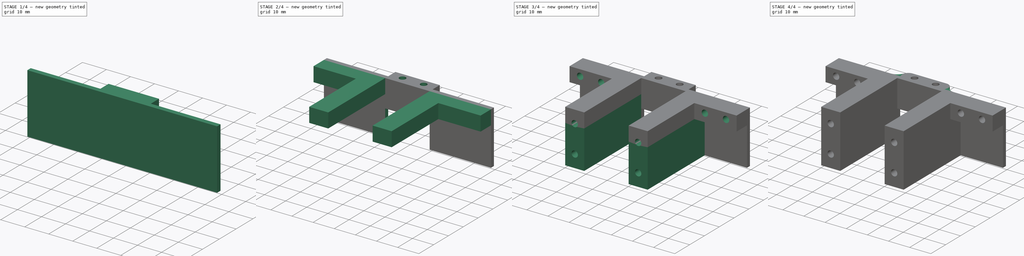
[diagram: build sequence overview — one tinted view per stage of 4, left to right]
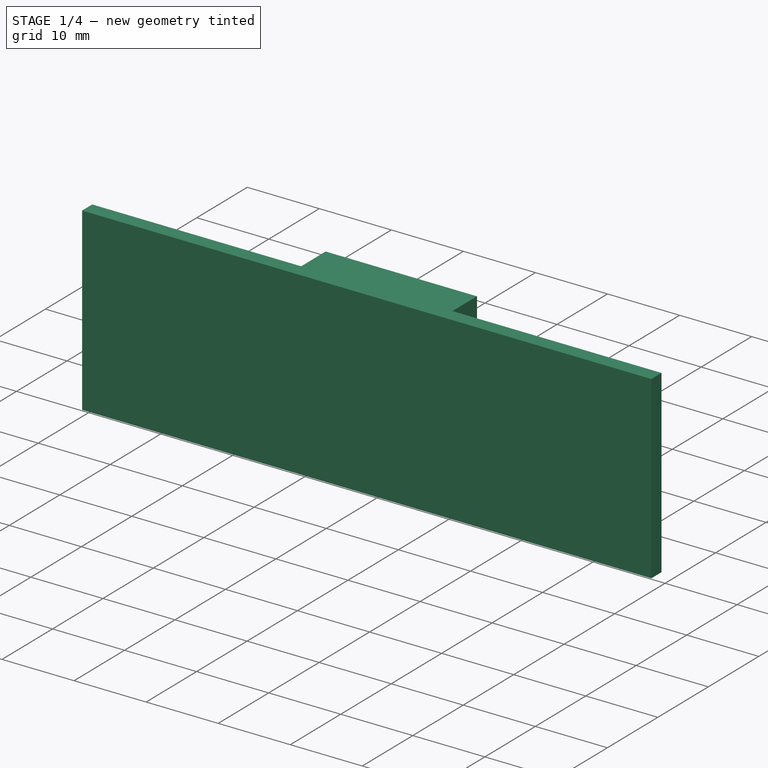
[diagram: stage 1 of 4 — iso view after this stage's code; geometry added in this stage tinted green]
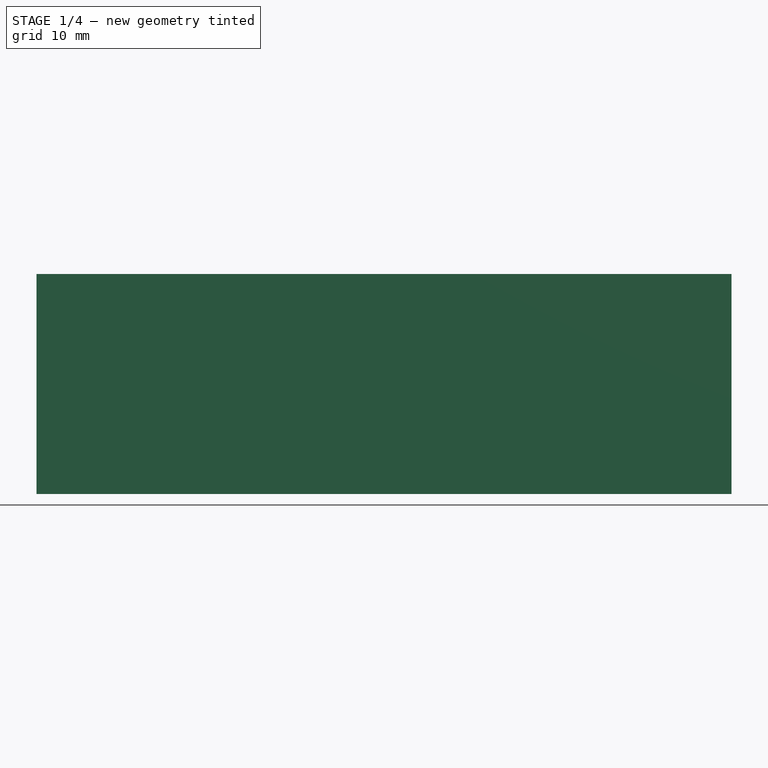
[diagram: stage 1 of 4 — front view after this stage's code; geometry added in this stage tinted green]
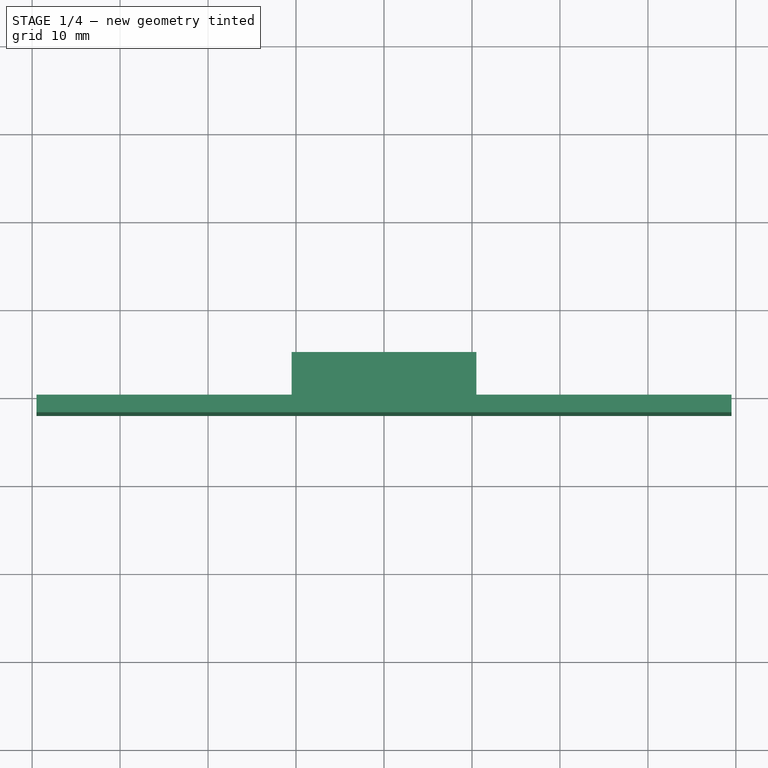
[diagram: stage 1 of 4 — top view after this stage's code; geometry added in this stage tinted green]
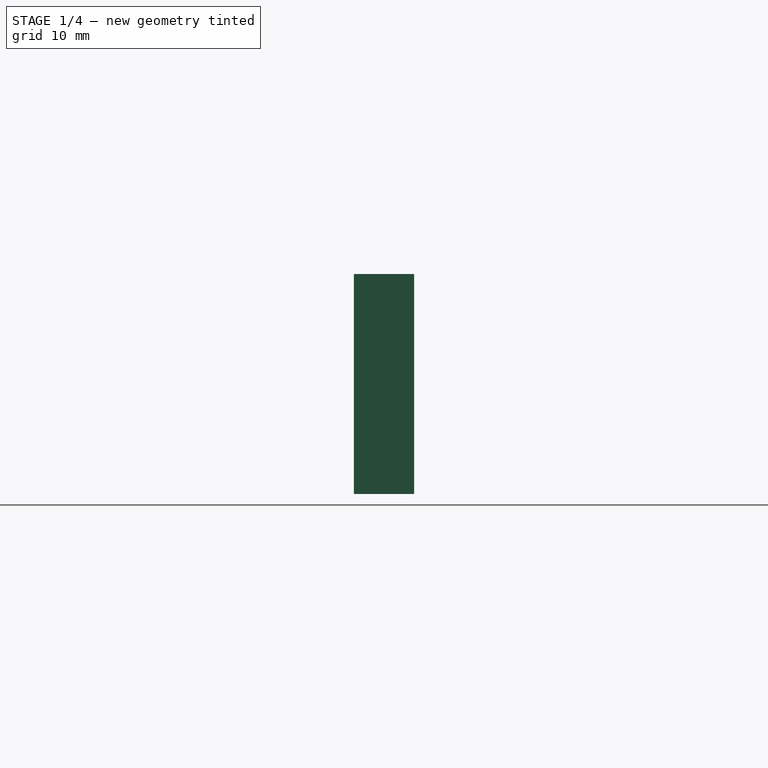
[diagram: stage 1 of 4 — right view after this stage's code; geometry added in this stage tinted green]
FCSTD DOCUMENT  (FreeCAD 0.21R33668 +26 (Git))
Label: 6F_hipfront2
License: All rights reserved
LicenseURL: http://en.wikipedia.org/wiki/All_rights_reserved
objects: Sketcher::SketchObject×8, PartDesign::Pad×4, PartDesign::Pocket×4, PartDesign::Fillet×2, Spreadsheet::Sheet×1, PartDesign::Plane×1, PartDesign::Body×1
note: 30 computed .brp shape members not serialized (recipe doc carries the construction recipe); baked Part::Feature solids carry a one-line shape summary decoded from their .brp

FEATURE [Sketcher::SketchObject] Sketch  label="baseSketch"
  FullyConstrained = true
  MapMode = 5
  Placement = pos=(0,0,0) rot=(1,0,0;1.5708rad)
  Support = -> [XZ_Plane]
  expr: Constraints[6] = Spreadsheet.hip_width
  expr: Constraints[8] = Spreadsheet.hip_height_frontback
  sketch-geometry (4):
    g0: LineSegment StartX=-39.5 StartY=12.5 StartZ=0 EndX=39.5 EndY=12.5 EndZ=0
    g1: LineSegment StartX=39.5 StartY=12.5 StartZ=0 EndX=39.5 EndY=-12.5 EndZ=0
    g2: LineSegment StartX=39.5 StartY=-12.5 StartZ=0 EndX=-39.5 EndY=-12.5 EndZ=0
    g3: LineSegment StartX=-39.5 StartY=-12.5 StartZ=0 EndX=-39.5 EndY=12.5 EndZ=0
  constraints (10):
    c: Coincident(g0,g1)
    c: Coincident(g1,g2)
    c: Coincident(g2,g3)
    c: Coincident(g3,g0)
    c: Horizontal(g2)
    c: Vertical(g1)
    c: DistanceX(g0,g0) = 79
    c: Symmetric(g0,g0,g-2)
    c: DistanceY(g3,g3) = 25
    c: Symmetric(g0,g2,g-1)
FEATURE [Spreadsheet::Sheet] Spreadsheet
  cells = A2='hip_width; B2(hip_width)=79; A3='hip_height_frontback; B3(hip_height_frontback)=25; A4='hole_from_mid; B4(hole_from_mid)=17; A5='hole_dia; B5(hole_dia)=3; A6='hole_dist_from_middle; B6(hole_dist_from_middle)=6.25; A7='servo_hold_depth; B7(servo_hold_depth)=6.85; A8='servo_hold_width; B8(servo_hold_width)=21; A9='servo_hole_from_hip_plate; B9(servo_hole_from_hip_plate)==B7 - 3 - B11; A10='servo_holes_distance; B10(servo_holes_distance)=10; A11='thickness; B11(thickness)=2
FEATURE [PartDesign::Pad] Pad  label="basePad"
  Direction = (0,-1,-2e-16)
  Length = 2
  Length2 = 10
  Placement = pos=(0,0,0) rot=(1,0,0;1.5708rad)
  Profile = -> Sketch
  ReferenceAxis = -> Sketch [N_Axis]
  Type = 0
  expr: Length = Spreadsheet.thickness
FEATURE [Sketcher::SketchObject] Sketch001  label="midServoFrontSketch"
  ExternalGeometry = -> [Pad]
  FullyConstrained = true
  MapMode = 5
  Placement = pos=(0,0,0) rot=(-1,0,0;1.5708rad)
  Support = -> [Pad]
  expr: Constraints[7] = Spreadsheet.servo_hold_width
  sketch-geometry (4):
    g0: LineSegment StartX=-10.5 StartY=12.5 StartZ=0 EndX=10.5 EndY=12.5 EndZ=0
    g1: LineSegment StartX=10.5 StartY=12.5 StartZ=0 EndX=10.5 EndY=-12.5 EndZ=0
    g2: LineSegment StartX=10.5 StartY=-12.5 StartZ=0 EndX=-10.5 EndY=-12.5 EndZ=0
    g3: LineSegment StartX=-10.5 StartY=-12.5 StartZ=0 EndX=-10.5 EndY=12.5 EndZ=0
  constraints (11):
    c: Coincident(g0,g1)
    c: Coincident(g1,g2)
    c: Coincident(g2,g3)
    c: Coincident(g3,g0)
    c: Horizontal(g2)
    c: Vertical(g1)
    c: Vertical(g3)
    c: DistanceX(g0,g0) = 21
    c: Symmetric(g0,g0,g-2)
    c: Horizontal(g2,g-4)
    c: Horizontal(g0,g-5)
FEATURE [PartDesign::Pad] Pad001  label="midServoFrontPad"
  BaseFeature = -> Pad
  Direction = (0,1,2e-16)
  Length = 4.85
  Length2 = 10
  Placement = pos=(0,0,0) rot=(1,0,0;1.5708rad)
  Profile = -> Sketch001
  ReferenceAxis = -> Sketch001 [N_Axis]
  Type = 0
  expr: Length = Spreadsheet.servo_hold_depth - Spreadsheet.thickness
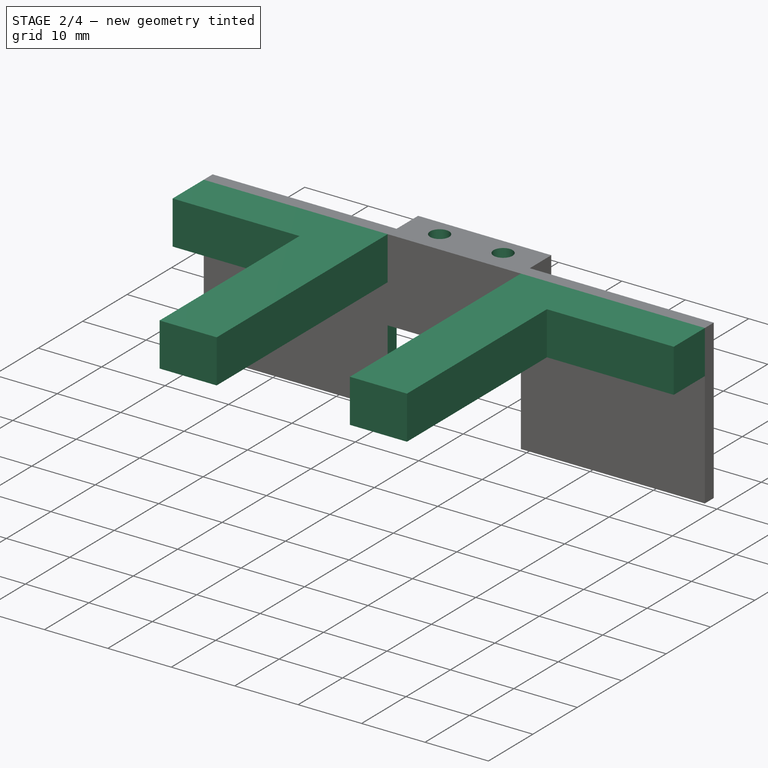
[diagram: stage 2 of 4 — iso view after this stage's code; geometry added in this stage tinted green]
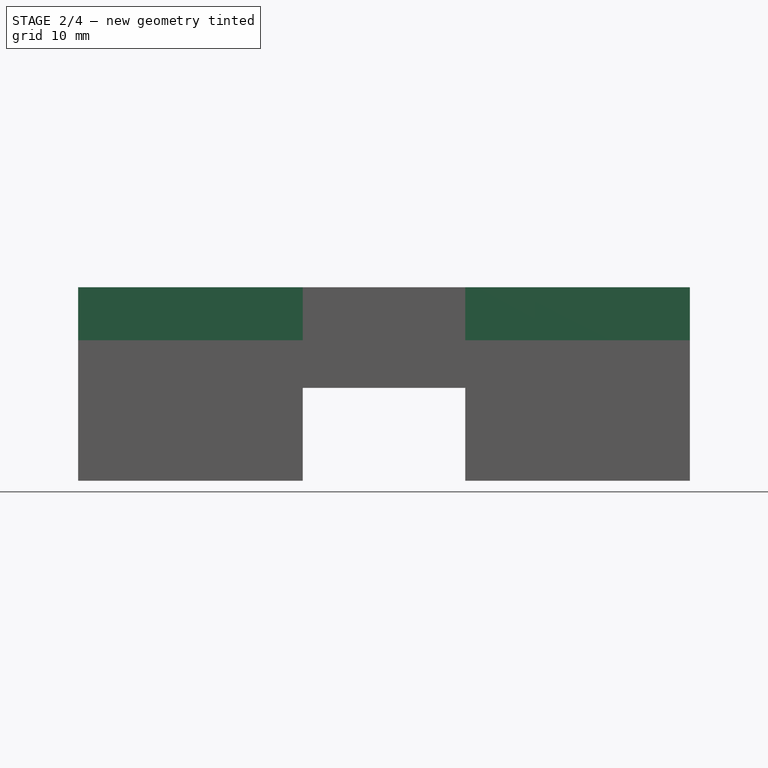
[diagram: stage 2 of 4 — front view after this stage's code; geometry added in this stage tinted green]
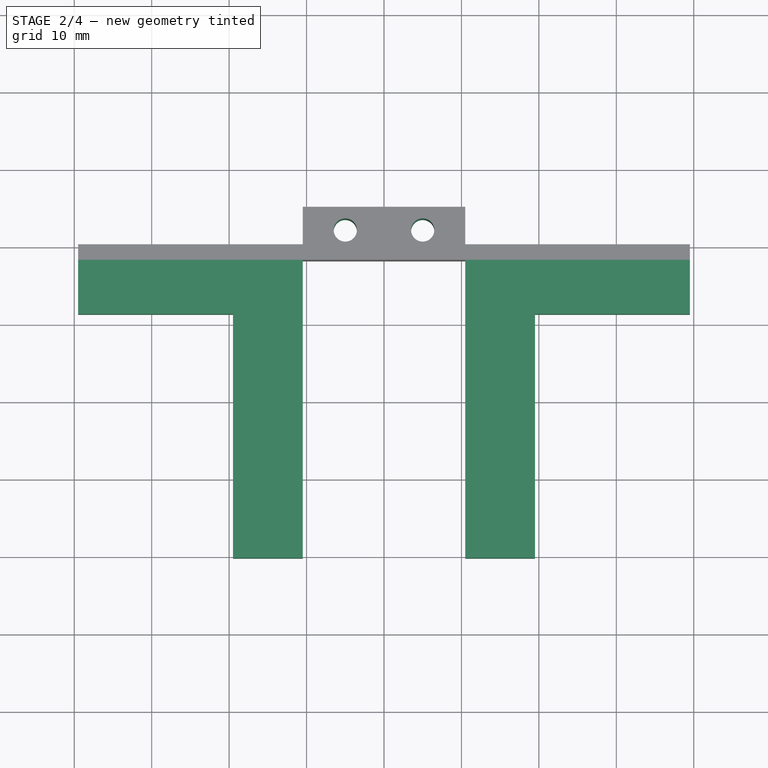
[diagram: stage 2 of 4 — top view after this stage's code; geometry added in this stage tinted green]
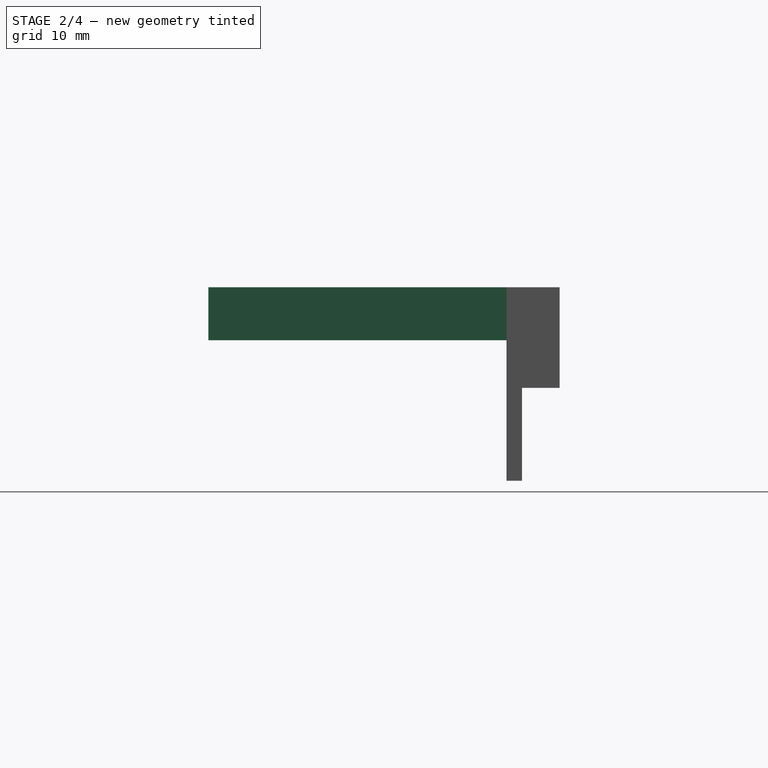
[diagram: stage 2 of 4 — right view after this stage's code; geometry added in this stage tinted green]
FEATURE [Sketcher::SketchObject] Sketch002  label="midServoFrontHolesSketch"
  FullyConstrained = true
  MapMode = 5
  Placement = pos=(0,-2.8e-15,12.5) rot=(0,0,1;3.14159rad)
  Support = -> [Pad001]
  expr: Constraints[1] = Spreadsheet.servo_hole_from_hip_plate
  expr: Constraints[3] = Spreadsheet.hole_dia
  expr: Constraints[4] = Spreadsheet.servo_holes_distance
  sketch-geometry (2):
    g0: Circle CenterX=-5 CenterY=-1.85 CenterZ=0 NormalX=0 NormalY=0 NormalZ=1 AngleXU=0 Radius=1.5
    g1: Circle CenterX=5 CenterY=-1.85 CenterZ=0 NormalX=0 NormalY=0 NormalZ=1 AngleXU=0 Radius=1.5
  constraints (5):
    c: Symmetric(g1,g0,g-2)
    c: DistanceY(g1,g-1) = 1.85
    c: Equal(g1,g0)
    c: Diameter(g1) = 3
    c: DistanceX(g0,g1) = 10
FEATURE [PartDesign::Pocket] Pocket  label="midServoFronHolesPocket"
  BaseFeature = -> Pad001
  Direction = (0,2e-16,-1)
  Length = 0
  Length2 = 5
  Placement = pos=(0,0,0) rot=(1,0,0;1.5708rad)
  Profile = -> Sketch002
  ReferenceAxis = -> Sketch002 [N_Axis]
  Type = 1
FEATURE [Sketcher::SketchObject] Sketch003
  ExternalGeometry = -> [Pocket]
  FullyConstrained = true
  MapMode = 5
  Placement = pos=(0,4.85,1.1e-15) rot=(-1,0,0;1.5708rad)
  Support = -> [Pocket]
  sketch-geometry (4):
    g0: LineSegment StartX=-10.5 StartY=12.5 StartZ=0 EndX=10.5 EndY=12.5 EndZ=0
    g1: LineSegment StartX=10.5 StartY=12.5 StartZ=0 EndX=10.5 EndY=0.5 EndZ=0
    g2: LineSegment StartX=10.5 StartY=0.5 StartZ=0 EndX=-10.5 EndY=0.5 EndZ=0
    g3: LineSegment StartX=-10.5 StartY=0.5 StartZ=0 EndX=-10.5 EndY=12.5 EndZ=0
  constraints (10):
    c: Coincident(g0,g1)
    c: Coincident(g1,g2)
    c: Coincident(g2,g3)
    c: Coincident(g3,g0)
    c: Horizontal(g2)
    c: Vertical(g1)
    c: Vertical(g3)
    c: DistanceY(g1,g0) = 12
    c: Coincident(g-3,g0)
    c: Coincident(g0,g-3)
FEATURE [PartDesign::Pocket] Pocket001
  BaseFeature = -> Pocket
  Direction = (0,-1,-2e-16)
  Length = 10
  Length2 = 5
  Placement = pos=(0,0,0) rot=(1,0,0;1.5708rad)
  Profile = -> Sketch003
  ReferenceAxis = -> Sketch003 [N_Axis]
  Type = 0
FEATURE [PartDesign::Plane] DatumPlane
  AttachmentOffset = pos=(0,12.5,0) rot=(1,0,0;1.5708rad)
  Length = 91.5698
  MapMode = 5
  Placement = pos=(0,-2,12.5) rot=(1,0,0;3.14159rad)
  ResizeMode = 0
  Support = -> [Pocket001]
  Width = 62.5698
FEATURE [Sketcher::SketchObject] Sketch004
  ExternalGeometry = -> [Pocket001]
  FullyConstrained = true
  MapMode = 5
  Placement = pos=(0,-2,12.5) rot=(1,0,0;3.14159rad)
  Support = -> [DatumPlane]
  sketch-geometry (12):
    g0: LineSegment StartX=39.5 StartY=-2.7e-15 StartZ=0 EndX=39.5 EndY=7 EndZ=0
    g1: LineSegment StartX=39.5 StartY=7 StartZ=0 EndX=19.5 EndY=7 EndZ=0
    g2: LineSegment StartX=19.5 StartY=7 StartZ=0 EndX=19.5 EndY=38.5 EndZ=0
    g3: LineSegment StartX=-19.5 StartY=38.5 StartZ=0 EndX=-19.5 EndY=7 EndZ=0
    g4: LineSegment StartX=-19.5 StartY=7 StartZ=0 EndX=-39.5 EndY=7 EndZ=0
    g5: LineSegment StartX=-39.5 StartY=7 StartZ=0 EndX=-39.5 EndY=-2.7e-15 EndZ=0
    g6: LineSegment StartX=19.5 StartY=38.5 StartZ=0 EndX=10.5 EndY=38.5 EndZ=0
    g7: LineSegment StartX=10.5 StartY=38.5 StartZ=0 EndX=10.5 EndY=0 EndZ=0
    g8: LineSegment StartX=10.5 StartY=-2.7e-15 StartZ=0 EndX=39.5 EndY=-2.7e-15 EndZ=0
    g9: LineSegment StartX=-19.5 StartY=38.5 StartZ=0 EndX=-10.5 EndY=38.5 EndZ=0
    g10: LineSegment StartX=-10.5 StartY=38.5 StartZ=0 EndX=-10.5 EndY=0 EndZ=0
    g11: LineSegment StartX=-10.5 StartY=-2.7e-15 StartZ=0 EndX=-39.5 EndY=-2.7e-15 EndZ=0
  constraints (34):
    c: Coincident(g0,g-4)
    c: Vertical(g0)
    c: Coincident(g1,g0)
    c: Horizontal(g1)
    c: Coincident(g2,g1)
    c: Vertical(g2)
    c: Vertical(g3)
    c: Horizontal(g4)
    c: Coincident(g5,g-3)
    c: Coincident(g5,g4)
    c: Coincident(g4,g3)
    c: Vertical(g5)
    c: Horizontal(g3,g1)
    c: DistanceY(g5,g5) = 7
    c: Coincident(g6,g2)
    c: Horizontal(g6)
    c: Coincident(g7,g6)
    c: Vertical(g7)
    c: Coincident(g8,g7)
    c: Coincident(g8,g0)
    c: Coincident(g9,g3)
    c: Horizontal(g9)
    c: Coincident(g10,g9)
    c: Vertical(g10)
    c: Coincident(g11,g10)
    c: Coincident(g11,g5)
    c: Horizontal(g8)
    c: Horizontal(g11)
    c: DistanceX(g6,g6) = 9
    c: Equal(g6,g9)
    c: Horizontal(g6,g9)
    c: DistanceY(g7,g7) = 38.5
    c: DistanceX(g1,g1) = 20
    c: Equal(g4,g1)
FEATURE [PartDesign::Pad] Pad002
  BaseFeature = -> Pocket001
  Direction = (0,0,-1)
  Length = 6.85
  Length2 = 10
  Placement = pos=(0,0,0) rot=(1,0,0;1.5708rad)
  Profile = -> Sketch004
  ReferenceAxis = -> Sketch004 [N_Axis]
  Type = 0
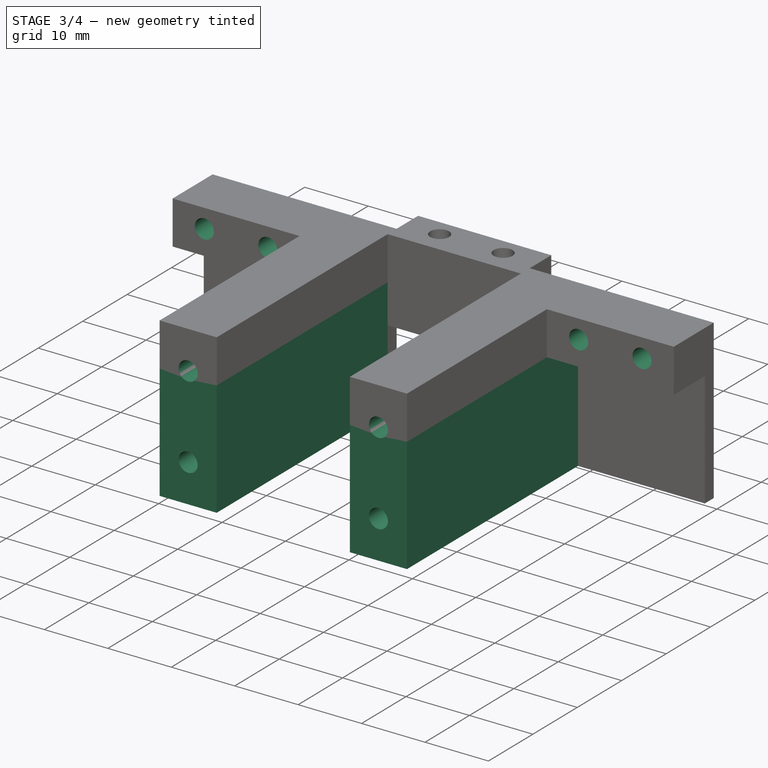
[diagram: stage 3 of 4 — iso view after this stage's code; geometry added in this stage tinted green]
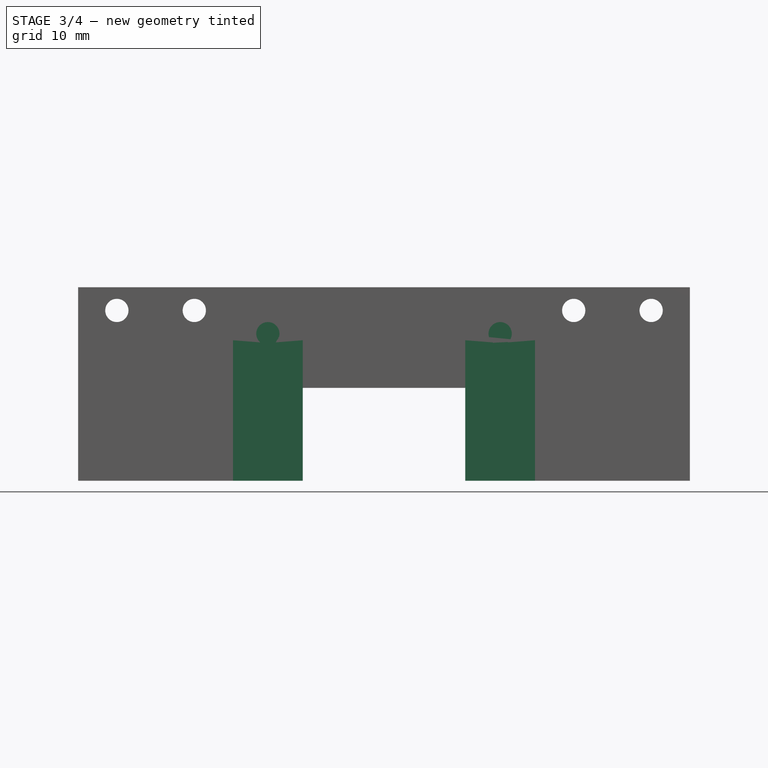
[diagram: stage 3 of 4 — front view after this stage's code; geometry added in this stage tinted green]
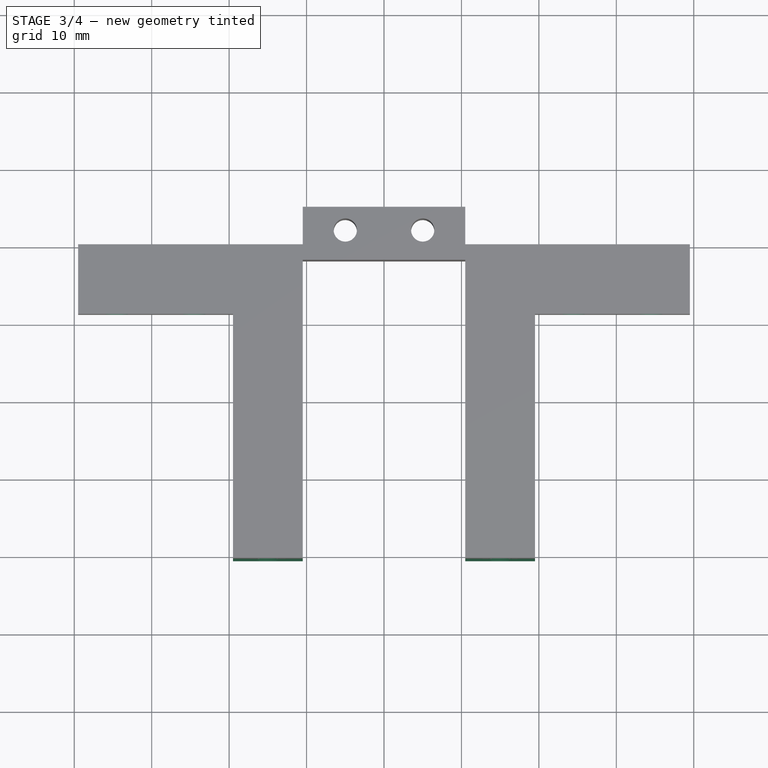
[diagram: stage 3 of 4 — top view after this stage's code; geometry added in this stage tinted green]
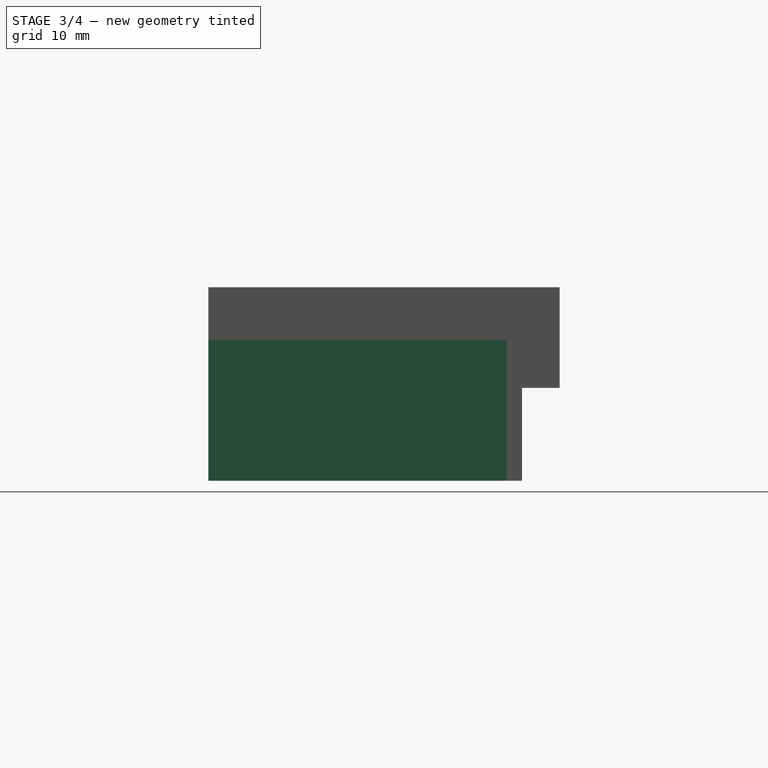
[diagram: stage 3 of 4 — right view after this stage's code; geometry added in this stage tinted green]
FEATURE [Sketcher::SketchObject] Sketch005
  ExternalGeometry = -> [Pad002]
  FullyConstrained = true
  MapMode = 5
  Placement = pos=(0,0,5.65) rot=(1,0,0;3.14159rad)
  Support = -> [Pad002]
  sketch-geometry (8):
    g0: LineSegment StartX=-10.5 StartY=2 StartZ=0 EndX=-19.5 EndY=2 EndZ=0
    g1: LineSegment StartX=-19.5 StartY=2 StartZ=0 EndX=-19.5 EndY=40.5 EndZ=0
    g2: LineSegment StartX=-19.5 StartY=40.5 StartZ=0 EndX=-10.5 EndY=40.5 EndZ=0
    g3: LineSegment StartX=-10.5 StartY=40.5 StartZ=0 EndX=-10.5 EndY=2 EndZ=0
    g4: LineSegment StartX=10.5 StartY=2 StartZ=0 EndX=19.5 EndY=2 EndZ=0
    g5: LineSegment StartX=19.5 StartY=2 StartZ=0 EndX=19.5 EndY=40.5 EndZ=0
    g6: LineSegment StartX=19.5 StartY=40.5 StartZ=0 EndX=10.5 EndY=40.5 EndZ=0
    g7: LineSegment StartX=10.5 StartY=40.5 StartZ=0 EndX=10.5 EndY=2 EndZ=0
  constraints (20):
    c: Coincident(g0,g1)
    c: Coincident(g1,g2)
    c: Coincident(g2,g3)
    c: Coincident(g3,g0)
    c: Horizontal(g0)
    c: Horizontal(g2)
    c: Vertical(g1)
    c: Vertical(g3)
    c: Coincident(g0,g-4)
    c: Coincident(g1,g-3)
    c: Coincident(g4,g5)
    c: Coincident(g5,g6)
    c: Coincident(g6,g7)
    c: Coincident(g7,g4)
    c: Horizontal(g4)
    c: Horizontal(g6)
    c: Vertical(g5)
    c: Vertical(g7)
    c: Coincident(g4,g-5)
    c: Coincident(g5,g-6)
FEATURE [PartDesign::Pad] Pad003
  BaseFeature = -> Pad002
  Direction = (0,0,-1)
  Length = 18.15
  Length2 = 10
  Placement = pos=(0,0,0) rot=(1,0,0;1.5708rad)
  Profile = -> Sketch005
  ReferenceAxis = -> Sketch005 [N_Axis]
  Type = 0
FEATURE [Sketcher::SketchObject] Sketch006
  ExternalGeometry = -> [Pad003]
  FullyConstrained = true
  MapMode = 5
  Placement = pos=(0,0,0) rot=(-1,0,0;1.5708rad)
  Support = -> [Pad003]
  sketch-geometry (4):
    g0: Circle CenterX=24.5 CenterY=-9.5 CenterZ=0 NormalX=0 NormalY=0 NormalZ=1 AngleXU=0 Radius=1.5
    g1: Circle CenterX=34.5 CenterY=-9.5 CenterZ=0 NormalX=0 NormalY=0 NormalZ=1 AngleXU=0 Radius=1.5
    g2: Circle CenterX=-34.5 CenterY=-9.5 CenterZ=0 NormalX=0 NormalY=0 NormalZ=1 AngleXU=0 Radius=1.5
    g3: Circle CenterX=-24.5 CenterY=-9.5 CenterZ=0 NormalX=0 NormalY=0 NormalZ=1 AngleXU=0 Radius=1.5
  constraints (12):
    c: Horizontal(g0,g1)
    c: Horizontal(g2,g3)
    c: Horizontal(g2,g0)
    c: Equal(g0,g1)
    c: Equal(g0,g2)
    c: Equal(g0,g3)
    c: Diameter(g0) = 3
    c: DistanceY(g-3,g1) = 3
    c: DistanceX(g1,g-3) = 5
    c: DistanceX(g0,g-3) = 15
    c: DistanceX(g-4,g2) = 5
    c: DistanceX(g-4,g3) = 15
FEATURE [PartDesign::Pocket] Pocket002
  BaseFeature = -> Pad003
  Direction = (0,-1,-2e-16)
  Length = 10
  Length2 = 5
  Placement = pos=(0,0,0) rot=(1,0,0;1.5708rad)
  Profile = -> Sketch006
  ReferenceAxis = -> Sketch006 [N_Axis]
  Type = 0
FEATURE [Sketcher::SketchObject] Sketch007  label="backPlateHoleSketch"
  ExternalGeometry = -> [Pocket002]
  FullyConstrained = true
  MapMode = 5
  Placement = pos=(0,-40.5,0) rot=(1,0,0;1.5708rad)
  Support = -> [Pocket002]
  expr: Constraints[10] = Spreadsheet.hip_height_frontback - 6
  sketch-geometry (4):
    g0: Circle CenterX=15 CenterY=-6.5 CenterZ=0 NormalX=0 NormalY=0 NormalZ=1 AngleXU=0 Radius=1.5
    g1: Circle CenterX=15 CenterY=6.5 CenterZ=0 NormalX=0 NormalY=0 NormalZ=1 AngleXU=0 Radius=1.5
    g2: Circle CenterX=-15 CenterY=-6.5 CenterZ=0 NormalX=0 NormalY=0 NormalZ=1 AngleXU=0 Radius=1.5
    g3: Circle CenterX=-15 CenterY=6.5 CenterZ=0 NormalX=0 NormalY=0 NormalZ=1 AngleXU=0 Radius=1.5
  constraints (11):
    c: Horizontal(g1,g3)
    c: Vertical(g1,g0)
    c: Vertical(g2,g3)
    c: Equal(g2,g3)
    c: Equal(g2,g0)
    c: Equal(g2,g1)
    c: Diameter(g2) = 3
    c: Symmetric(g0,g2,g-2)
    c: DistanceX(g3,g-3) = 4.5
    c: DistanceY(g3,g-3) = 6
    c: DistanceY(g2,g-3) = 19
FEATURE [PartDesign::Pocket] Pocket003
  BaseFeature = -> Pocket002
  Direction = (0,1,-2e-16)
  Length = 22
  Length2 = 5
  Placement = pos=(0,0,0) rot=(1,0,0;1.5708rad)
  Profile = -> Sketch007
  ReferenceAxis = -> Sketch007 [N_Axis]
  Type = 0
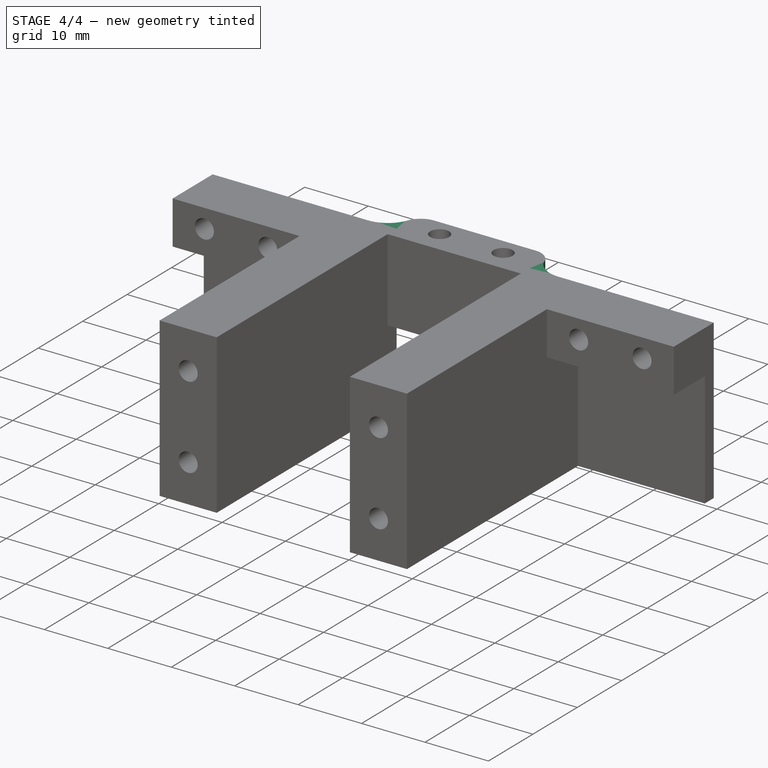
[diagram: stage 4 of 4 — iso view after this stage's code; geometry added in this stage tinted green]
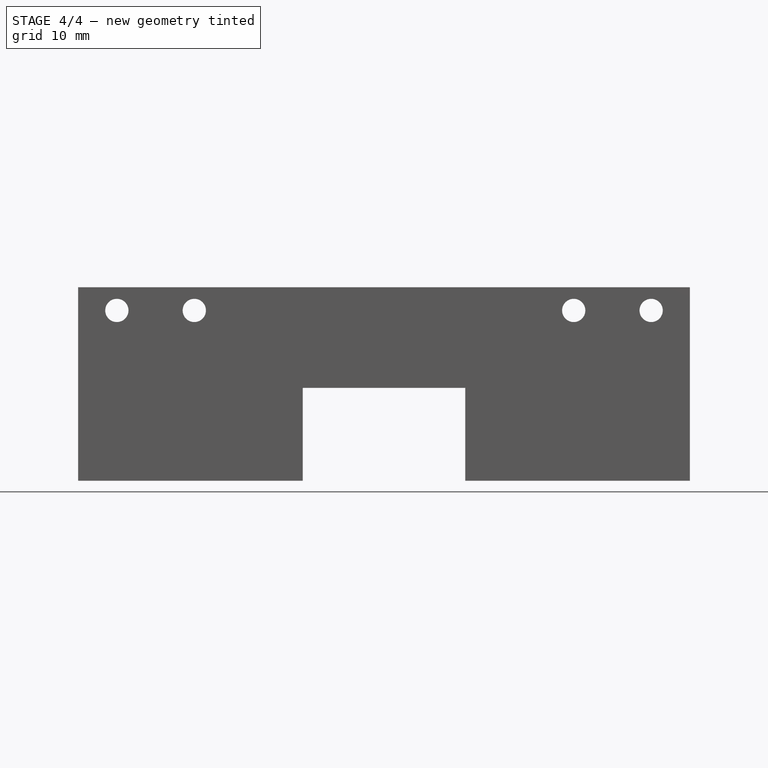
[diagram: stage 4 of 4 — front view after this stage's code; geometry added in this stage tinted green]
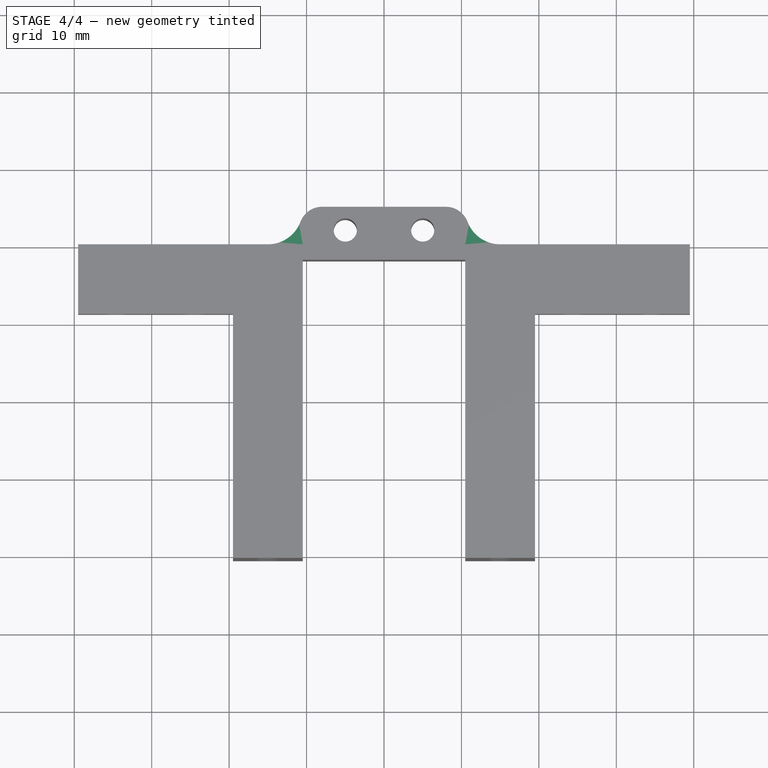
[diagram: stage 4 of 4 — top view after this stage's code; geometry added in this stage tinted green]
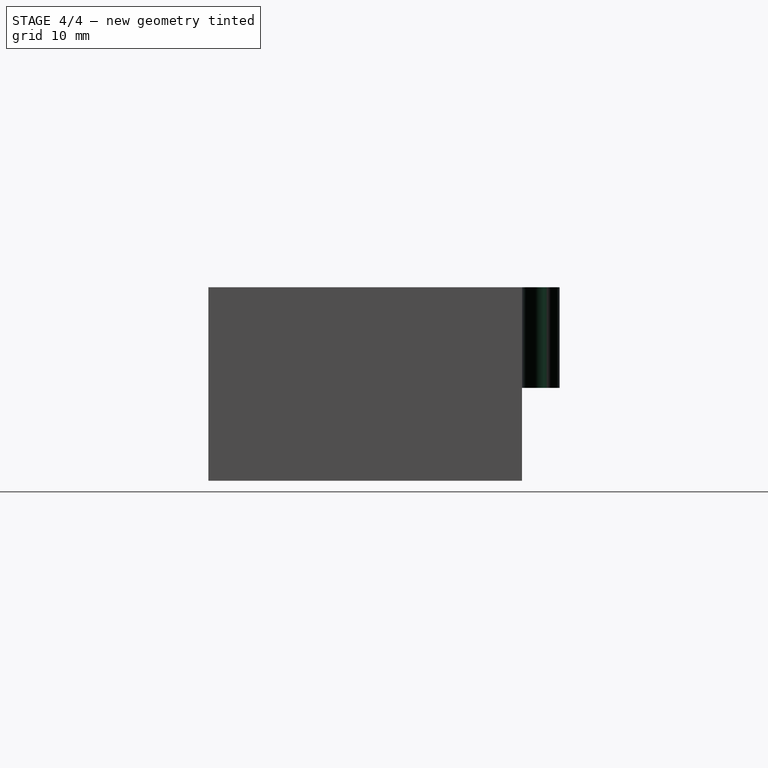
[diagram: stage 4 of 4 — right view after this stage's code; geometry added in this stage tinted green]
FEATURE [PartDesign::Fillet] Fillet
  Base = -> Pocket003 [Edge19,Edge29]
  BaseFeature = -> Pocket003
  Placement = pos=(0,0,0) rot=(1,0,0;1.5708rad)
  Radius = 4.5
  SupportTransform = false
  UseAllEdges = false
FEATURE [PartDesign::Fillet] Fillet001
  Base = -> Fillet [Edge72,Edge73]
  BaseFeature = -> Fillet
  Placement = pos=(0,0,0) rot=(1,0,0;1.5708rad)
  Radius = 3
  SupportTransform = false
  UseAllEdges = false
FEATURE [PartDesign::Body] Body
  Group = -> [Sketch,Pad,Sketch001,Pad001,Sketch002,Pocket,Sketch003,Pocket001,DatumPlane,Sketch004,Pad002,Sketch005,Pad003,Sketch006,Pocket002,Sketch007,Pocket003,Fillet,Fillet001]
  Origin = -> Origin
  Tip = -> Fillet001
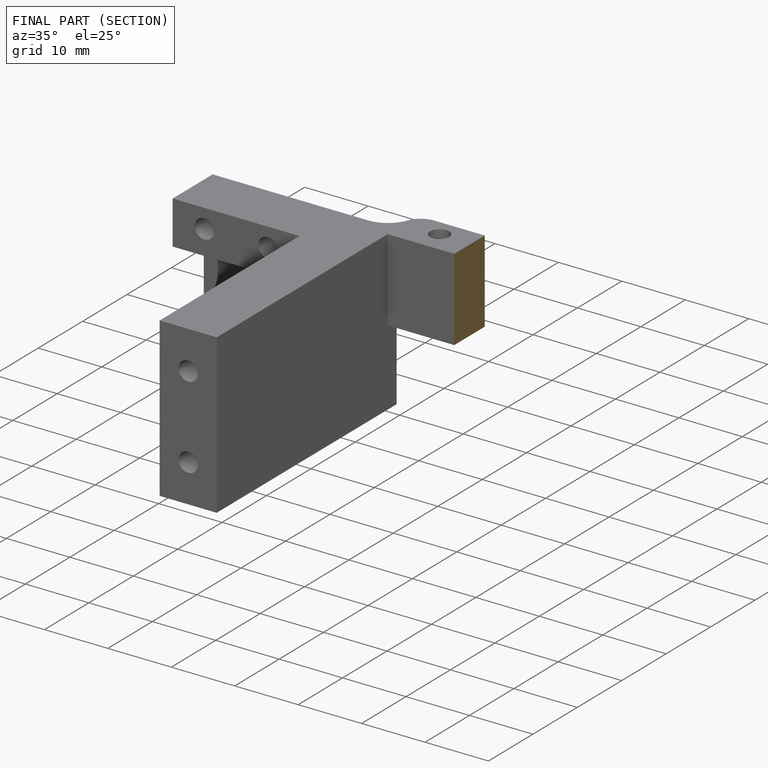
[diagram: finished part — half-section view (interior)]
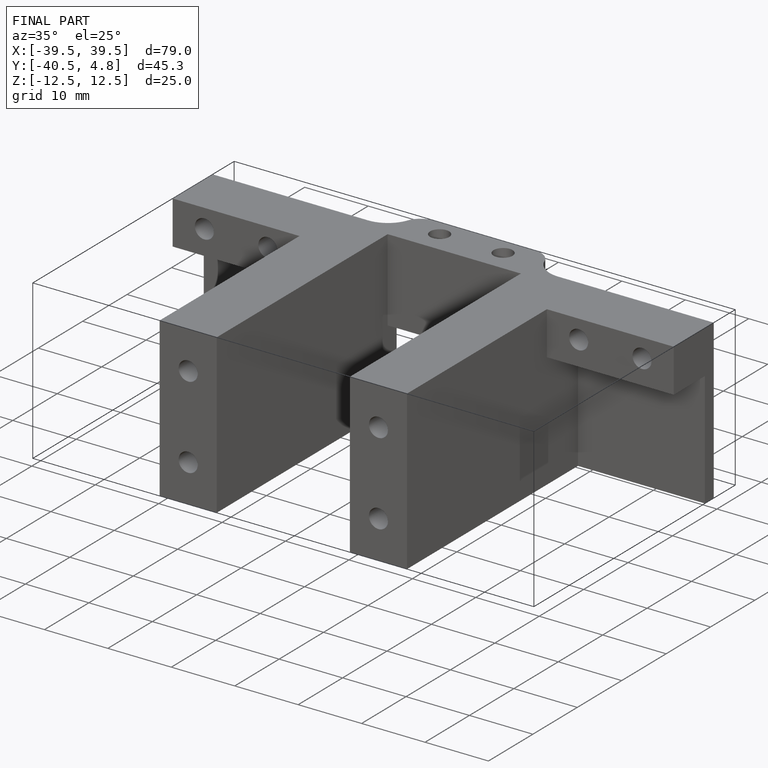
[diagram: finished part — iso view with bounding-box wireframe]
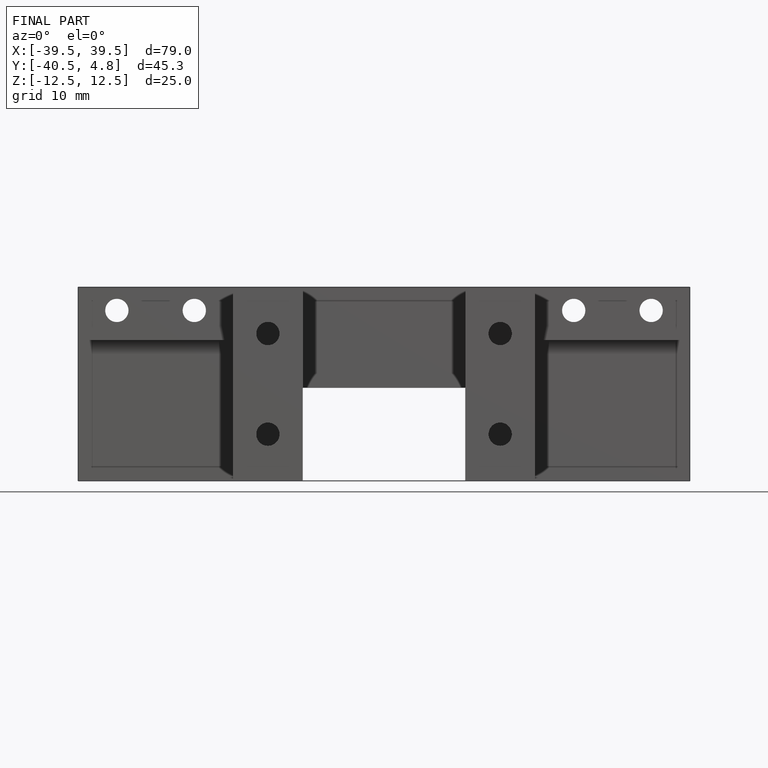
[diagram: finished part — front view with bounding-box wireframe]
